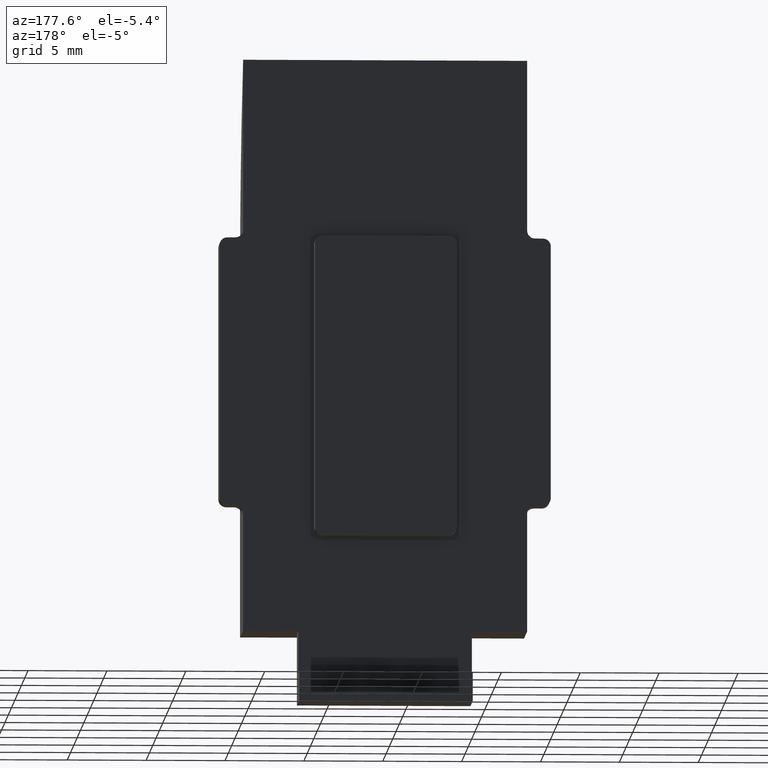
[diagram: clean part render]
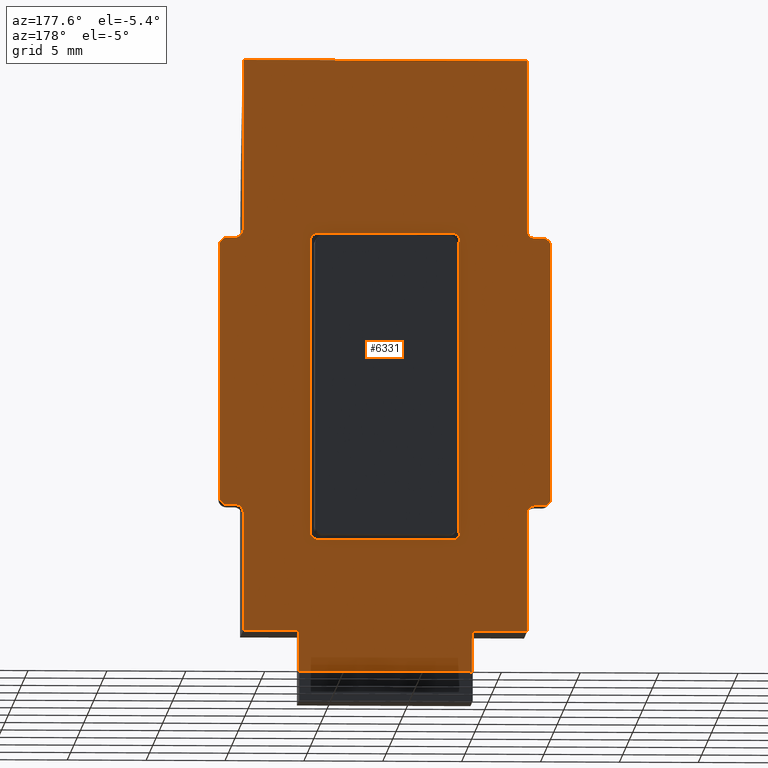
[diagram: same view with one face highlighted and labeled with its STEP entity id]
A machine part, auxiliary view. The second image highlights one B-rep face of the part: STEP entity #6331.
In plain terms, the highlighted planar face has unit normal (0, -1, -0).
Its self-contained STEP definition (entity closure, byte-faithful):
#73 = EDGE_CURVE ( 'NONE', #1155, #10602, #17064, .T. ) ;
#91 = VERTEX_POINT ( 'NONE', #8177 ) ;
#169 = VERTEX_POINT ( 'NONE', #1642 ) ;
#210 = ORIENTED_EDGE ( 'NONE', *, *, #6950, .T. ) ;
#285 = VERTEX_POINT ( 'NONE', #4861 ) ;
#477 = EDGE_CURVE ( 'NONE', #16206, #285, #15542, .T. ) ;
#620 = VERTEX_POINT ( 'NONE', #1868 ) ;
#788 = AXIS2_PLACEMENT_3D ( 'NONE', #14200, #7802, #4671 ) ;
#807 = CARTESIAN_POINT ( 'NONE',  ( -4.250000000000000000, 4.749999999999999112, 24.79999999999997939 ) ) ;
#840 = ORIENTED_EDGE ( 'NONE', *, *, #2299, .F. ) ;
#985 = VECTOR ( 'NONE', #8581, 1000.000000000000000 ) ;
#1121 = VERTEX_POINT ( 'NONE', #9013 ) ;
#1144 = CARTESIAN_POINT ( 'NONE',  ( -9.000000000000000000, 4.749999999999997335, 36.29999999999999716 ) ) ;
#1155 = VERTEX_POINT ( 'NONE', #11733 ) ;
#1160 = CARTESIAN_POINT ( 'NONE',  ( 9.999999999999998224, 4.749999999999995559, 24.99999999999997868 ) ) ;
#1166 = CARTESIAN_POINT ( 'NONE',  ( -4.250000000000000000, 4.750000000000001776, 5.799999999999978506 ) ) ;
#1185 = ORIENTED_EDGE ( 'NONE', *, *, #2472, .T. ) ;
#1194 = CARTESIAN_POINT ( 'NONE',  ( -5.500000000000000000, 4.750000000000001776, 0.000000000000000000 ) ) ;
#1231 = EDGE_CURVE ( 'NONE', #620, #9934, #10044, .T. ) ;
#1249 = CARTESIAN_POINT ( 'NONE',  ( -9.999999999999998224, 4.749999999999999112, 24.49999999999997513 ) ) ;
#1375 = CARTESIAN_POINT ( 'NONE',  ( -5.500000000000000000, 4.750000000000001776, -2.081668171172168513E-14 ) ) ;
#1430 = EDGE_CURVE ( 'NONE', #3749, #1848, #7914, .T. ) ;
#1454 = EDGE_CURVE ( 'NONE', #8890, #15946, #4307, .T. ) ;
#1509 = ORIENTED_EDGE ( 'NONE', *, *, #4008, .T. ) ;
#1642 = CARTESIAN_POINT ( 'NONE',  ( 5.499999999999999112, 4.750000000000001776, -2.081668171172168513E-14 ) ) ;
#1844 = ORIENTED_EDGE ( 'NONE', *, *, #4687, .F. ) ;
#1848 = VERTEX_POINT ( 'NONE', #16073 ) ;
#1858 = DIRECTION ( 'NONE',  ( -1.000000000000000000, -0.000000000000000000, -0.000000000000000000 ) ) ;
#1868 = CARTESIAN_POINT ( 'NONE',  ( 4.249999999999998224, 4.750000000000001776, 5.799999999999978506 ) ) ;
#1946 = DIRECTION ( 'NONE',  ( 1.047180315457801829E-31, -1.112002228190260459E-16, 1.000000000000000000 ) ) ;
#2299 = EDGE_CURVE ( 'NONE', #16244, #1121, #17435, .T. ) ;
#2305 = CARTESIAN_POINT ( 'NONE',  ( -10.49999999999999822, 4.749999999999995559, 7.999999999999976019 ) ) ;
#2325 = CARTESIAN_POINT ( 'NONE',  ( 9.999999999999998224, 4.749999999999999112, 24.49999999999997513 ) ) ;
#2472 = EDGE_CURVE ( 'NONE', #16206, #1121, #10006, .T. ) ;
#2569 = EDGE_CURVE ( 'NONE', #169, #5911, #7672, .T. ) ;
#2649 = CARTESIAN_POINT ( 'NONE',  ( 9.500000000000000000, 4.750000000000000888, 7.499999999999975131 ) ) ;
#2705 = VERTEX_POINT ( 'NONE', #9885 ) ;
#2789 = EDGE_CURVE ( 'NONE', #7587, #169, #12769, .T. ) ;
#2800 = LINE ( 'NONE', #10252, #5084 ) ;
#2825 = ORIENTED_EDGE ( 'NONE', *, *, #13451, .T. ) ;
#2831 = CARTESIAN_POINT ( 'NONE',  ( -4.250000000000000000, 4.750000000000000888, 6.299999999999979394 ) ) ;
#2863 = CIRCLE ( 'NONE', #3051, 0.5000000000000004441 ) ;
#2882 = CARTESIAN_POINT ( 'NONE',  ( -4.750000000000000888, 4.750000000000001776, 6.299999999999979394 ) ) ;
#2895 = EDGE_CURVE ( 'NONE', #16244, #4429, #9548, .T. ) ;
#3051 = AXIS2_PLACEMENT_3D ( 'NONE', #1249, #17306, #9175 ) ;
#3095 = ORIENTED_EDGE ( 'NONE', *, *, #2569, .F. ) ;
#3269 = DIRECTION ( 'NONE',  ( 0.000000000000000000, -4.448008912761044053E-17, -1.000000000000000000 ) ) ;
#3374 = CIRCLE ( 'NONE', #11768, 0.5000000000000004441 ) ;
#3432 = ORIENTED_EDGE ( 'NONE', *, *, #2789, .F. ) ;
#3496 = VECTOR ( 'NONE', #3269, 1000.000000000000000 ) ;
#3501 = DIRECTION ( 'NONE',  ( 0.000000000000000000, 0.000000000000000000, -1.000000000000000000 ) ) ;
#3592 = CARTESIAN_POINT ( 'NONE',  ( -9.000000000000000000, 4.750000000000000888, 7.499999999999975131 ) ) ;
#3627 = ORIENTED_EDGE ( 'NONE', *, *, #6387, .F. ) ;
#3655 = CARTESIAN_POINT ( 'NONE',  ( 9.500000000000000000, 4.749999999999999112, 25.49999999999997868 ) ) ;
#3689 = VECTOR ( 'NONE', #7224, 1000.000000000000000 ) ;
#3706 = ORIENTED_EDGE ( 'NONE', *, *, #11330, .F. ) ;
#3743 = CARTESIAN_POINT ( 'NONE',  ( -10.49999999999999822, 4.749999999999995559, 8.499999999999976907 ) ) ;
#3749 = VERTEX_POINT ( 'NONE', #12877 ) ;
#3787 = CARTESIAN_POINT ( 'NONE',  ( 10.49999999999999822, 4.749999999999995559, 8.499999999999976907 ) ) ;
#3828 = ORIENTED_EDGE ( 'NONE', *, *, #7582, .T. ) ;
#3943 = ORIENTED_EDGE ( 'NONE', *, *, #1231, .F. ) ;
#4008 = EDGE_CURVE ( 'NONE', #1848, #1155, #13167, .T. ) ;
#4118 = VECTOR ( 'NONE', #1858, 1000.000000000000000 ) ;
#4191 = CARTESIAN_POINT ( 'NONE',  ( 4.249999999999998224, 4.750000000000002665, 25.29999999999997939 ) ) ;
#4209 = DIRECTION ( 'NONE',  ( 0.000000000000000000, 0.000000000000000000, -1.000000000000000000 ) ) ;
#4304 = LINE ( 'NONE', #4329, #14061 ) ;
#4307 = LINE ( 'NONE', #12544, #985 ) ;
#4329 = CARTESIAN_POINT ( 'NONE',  ( -9.000000000000000000, 4.750000000000001776, 0.000000000000000000 ) ) ;
#4387 = ORIENTED_EDGE ( 'NONE', *, *, #14926, .T. ) ;
#4404 = ORIENTED_EDGE ( 'NONE', *, *, #8356, .T. ) ;
#4429 = VERTEX_POINT ( 'NONE', #17494 ) ;
#4575 = VERTEX_POINT ( 'NONE', #3592 ) ;
#4613 = VECTOR ( 'NONE', #12220, 1000.000000000000000 ) ;
#4652 = AXIS2_PLACEMENT_3D ( 'NONE', #2649, #14823, #17403 ) ;
#4671 = DIRECTION ( 'NONE',  ( 0.000000000000000000, 0.000000000000000000, -1.000000000000000000 ) ) ;
#4687 = EDGE_CURVE ( 'NONE', #5911, #17099, #13300, .T. ) ;
#4861 = CARTESIAN_POINT ( 'NONE',  ( 9.500000000000000000, 4.749999999999995559, 24.99999999999997868 ) ) ;
#4934 = AXIS2_PLACEMENT_3D ( 'NONE', #2325, #8952, #8843 ) ;
#4975 = CARTESIAN_POINT ( 'NONE',  ( 9.000000000000000000, 4.750000000000001776, 0.000000000000000000 ) ) ;
#4976 = DIRECTION ( 'NONE',  ( 0.000000000000000000, -1.000000000000000000, -1.112002228190260459E-16 ) ) ;
#4994 = DIRECTION ( 'NONE',  ( 0.000000000000000000, 0.000000000000000000, -1.000000000000000000 ) ) ;
#5058 = AXIS2_PLACEMENT_3D ( 'NONE', #4975, #15668, #11827 ) ;
#5084 = VECTOR ( 'NONE', #11608, 1000.000000000000000 ) ;
#5277 = VERTEX_POINT ( 'NONE', #9220 ) ;
#5321 = VERTEX_POINT ( 'NONE', #3743 ) ;
#5377 = ORIENTED_EDGE ( 'NONE', *, *, #73, .T. ) ;
#5467 = EDGE_CURVE ( 'NONE', #4429, #7439, #7352, .T. ) ;
#5497 = CARTESIAN_POINT ( 'NONE',  ( 9.000000000000000000, 4.750000000000001776, -2.081668171172168513E-14 ) ) ;
#5605 = LINE ( 'NONE', #5789, #16405 ) ;
#5676 = CARTESIAN_POINT ( 'NONE',  ( -9.000000000000000000, 4.750000000000001776, 0.000000000000000000 ) ) ;
#5677 = DIRECTION ( 'NONE',  ( 0.000000000000000000, -1.000000000000000000, -1.112002228190260459E-16 ) ) ;
#5765 = AXIS2_PLACEMENT_3D ( 'NONE', #16471, #6946, #16415 ) ;
#5789 = CARTESIAN_POINT ( 'NONE',  ( -4.750000000000000888, 4.750000000000002665, 25.29999999999997939 ) ) ;
#5828 = LINE ( 'NONE', #2305, #6464 ) ;
#5911 = VERTEX_POINT ( 'NONE', #9842 ) ;
#6094 = CARTESIAN_POINT ( 'NONE',  ( 9.000000000000000000, 4.750000000000001776, -2.700000000000021938 ) ) ;
#6128 = AXIS2_PLACEMENT_3D ( 'NONE', #10416, #4976, #14437 ) ;
#6204 = CARTESIAN_POINT ( 'NONE',  ( -9.000000000000000000, 4.750000000000001776, -2.081668171172168513E-14 ) ) ;
#6288 = DIRECTION ( 'NONE',  ( 1.000000000000000000, -0.000000000000000000, -0.000000000000000000 ) ) ;
#6331 = ADVANCED_FACE ( 'NONE', ( #8173, #15366 ), #11771, .F. ) ;
#6350 = DIRECTION ( 'NONE',  ( 0.000000000000000000, -1.112002228190260459E-16, 1.000000000000000000 ) ) ;
#6387 = EDGE_CURVE ( 'NONE', #91, #6411, #5828, .T. ) ;
#6405 = CARTESIAN_POINT ( 'NONE',  ( -4.750000000000000888, 4.750000000000001776, 5.799999999999978506 ) ) ;
#6411 = VERTEX_POINT ( 'NONE', #14551 ) ;
#6464 = VECTOR ( 'NONE', #6288, 1000.000000000000000 ) ;
#6546 = EDGE_LOOP ( 'NONE', ( #11820, #11209, #7000, #1509, #5377, #14754, #3706, #9752, #13638, #1185, #840, #16230, #12422, #10177, #1844, #3095, #3432, #3828, #210, #11962, #14841, #4387, #3627, #14119 ) ) ;
#6660 = VERTEX_POINT ( 'NONE', #13699 ) ;
#6692 = VERTEX_POINT ( 'NONE', #11253 ) ;
#6703 = DIRECTION ( 'NONE',  ( 1.000000000000000000, 0.000000000000000000, 0.000000000000000000 ) ) ;
#6785 = CARTESIAN_POINT ( 'NONE',  ( 9.000000000000000000, 4.750000000000001776, 0.000000000000000000 ) ) ;
#6945 = EDGE_CURVE ( 'NONE', #620, #14202, #11955, .T. ) ;
#6946 = DIRECTION ( 'NONE',  ( 0.000000000000000000, -1.000000000000000000, -1.112002228190260459E-16 ) ) ;
#6950 = EDGE_CURVE ( 'NONE', #9031, #8508, #8138, .T. ) ;
#6991 = AXIS2_PLACEMENT_3D ( 'NONE', #807, #10211, #14125 ) ;
#7000 = ORIENTED_EDGE ( 'NONE', *, *, #1430, .T. ) ;
#7025 = VECTOR ( 'NONE', #6703, 1000.000000000000000 ) ;
#7086 = VECTOR ( 'NONE', #6350, 1000.000000000000000 ) ;
#7092 = VERTEX_POINT ( 'NONE', #2882 ) ;
#7209 = AXIS2_PLACEMENT_3D ( 'NONE', #8576, #9996, #16685 ) ;
#7224 = DIRECTION ( 'NONE',  ( 1.000000000000000000, -0.000000000000000000, -0.000000000000000000 ) ) ;
#7244 = EDGE_CURVE ( 'NONE', #7092, #6692, #5605, .T. ) ;
#7273 = CARTESIAN_POINT ( 'NONE',  ( 5.500000000000000000, 4.750000000000001776, -2.700000000000021938 ) ) ;
#7352 = LINE ( 'NONE', #16675, #8821 ) ;
#7439 = VERTEX_POINT ( 'NONE', #8395 ) ;
#7582 = EDGE_CURVE ( 'NONE', #7587, #9031, #12814, .T. ) ;
#7587 = VERTEX_POINT ( 'NONE', #7273 ) ;
#7605 = CARTESIAN_POINT ( 'NONE',  ( 9.000000000000000000, 4.749999999999997335, 36.29999999999999716 ) ) ;
#7672 = LINE ( 'NONE', #5497, #7025 ) ;
#7705 = CARTESIAN_POINT ( 'NONE',  ( 9.000000000000000000, 4.750000000000000888, 7.499999999999975131 ) ) ;
#7789 = EDGE_CURVE ( 'NONE', #5277, #3749, #2863, .T. ) ;
#7802 = DIRECTION ( 'NONE',  ( -0.000000000000000000, 1.000000000000000000, 1.112002228190260459E-16 ) ) ;
#7908 = AXIS2_PLACEMENT_3D ( 'NONE', #3655, #15822, #17209 ) ;
#7914 = LINE ( 'NONE', #15133, #3689 ) ;
#8138 = LINE ( 'NONE', #1194, #7086 ) ;
#8173 = FACE_BOUND ( 'NONE', #8538, .T. ) ;
#8177 = CARTESIAN_POINT ( 'NONE',  ( -9.999999999999998224, 4.749999999999995559, 7.999999999999976019 ) ) ;
#8180 = DIRECTION ( 'NONE',  ( 0.000000000000000000, -1.112002228190260459E-16, 1.000000000000000000 ) ) ;
#8356 = EDGE_CURVE ( 'NONE', #8890, #6692, #15931, .T. ) ;
#8395 = CARTESIAN_POINT ( 'NONE',  ( 9.500000000000000000, 4.749999999999995559, 7.999999999999976019 ) ) ;
#8456 = EDGE_CURVE ( 'NONE', #2705, #285, #9782, .T. ) ;
#8486 = DIRECTION ( 'NONE',  ( -0.000000000000000000, -0.000000000000000000, 1.000000000000000000 ) ) ;
#8503 = CARTESIAN_POINT ( 'NONE',  ( 4.749999999999999112, 4.750000000000002665, 25.29999999999997939 ) ) ;
#8508 = VERTEX_POINT ( 'NONE', #1375 ) ;
#8538 = EDGE_LOOP ( 'NONE', ( #3943, #10719, #13124, #2825, #11746, #4404, #13775, #17244 ) ) ;
#8576 = CARTESIAN_POINT ( 'NONE',  ( -9.500000000000000000, 4.749999999999999112, 25.49999999999997868 ) ) ;
#8581 = DIRECTION ( 'NONE',  ( 1.000000000000000000, 0.000000000000000000, 0.000000000000000000 ) ) ;
#8765 = CIRCLE ( 'NONE', #10186, 0.5000000000000004441 ) ;
#8784 = DIRECTION ( 'NONE',  ( -1.000000000000000000, -0.000000000000000000, -0.000000000000000000 ) ) ;
#8821 = VECTOR ( 'NONE', #13822, 1000.000000000000000 ) ;
#8843 = DIRECTION ( 'NONE',  ( 0.000000000000000000, 0.000000000000000000, -1.000000000000000000 ) ) ;
#8856 = DIRECTION ( 'NONE',  ( -0.000000000000000000, 1.000000000000000000, 1.112002228190260459E-16 ) ) ;
#8890 = VERTEX_POINT ( 'NONE', #10965 ) ;
#8952 = DIRECTION ( 'NONE',  ( -0.000000000000000000, 1.000000000000000000, 1.112002228190260459E-16 ) ) ;
#9013 = CARTESIAN_POINT ( 'NONE',  ( 10.49999999999999822, 4.749999999999995559, 24.49999999999997513 ) ) ;
#9031 = VERTEX_POINT ( 'NONE', #13980 ) ;
#9057 = EDGE_CURVE ( 'NONE', #11184, #10602, #10003, .T. ) ;
#9144 = VECTOR ( 'NONE', #1946, 1000.000000000000000 ) ;
#9175 = DIRECTION ( 'NONE',  ( 0.000000000000000000, 0.000000000000000000, -1.000000000000000000 ) ) ;
#9220 = CARTESIAN_POINT ( 'NONE',  ( -10.49999999999999822, 4.749999999999995559, 24.49999999999997513 ) ) ;
#9241 = DIRECTION ( 'NONE',  ( 0.000000000000000000, -1.000000000000000000, -1.112002228190260459E-16 ) ) ;
#9548 = CIRCLE ( 'NONE', #788, 0.5000000000000004441 ) ;
#9601 = VECTOR ( 'NONE', #13058, 1000.000000000000000 ) ;
#9673 = DIRECTION ( 'NONE',  ( 0.000000000000000000, -1.112002228190260459E-16, 1.000000000000000000 ) ) ;
#9752 = ORIENTED_EDGE ( 'NONE', *, *, #8456, .T. ) ;
#9764 = VECTOR ( 'NONE', #8784, 1000.000000000000000 ) ;
#9782 = CIRCLE ( 'NONE', #7908, 0.5000000000000004441 ) ;
#9803 = CIRCLE ( 'NONE', #4652, 0.5000000000000004441 ) ;
#9842 = CARTESIAN_POINT ( 'NONE',  ( 9.000000000000000000, 4.750000000000001776, -2.081668171172168513E-14 ) ) ;
#9885 = CARTESIAN_POINT ( 'NONE',  ( 9.000000000000000000, 4.749999999999999112, 25.49999999999997868 ) ) ;
#9934 = VERTEX_POINT ( 'NONE', #1166 ) ;
#9940 = DIRECTION ( 'NONE',  ( -0.000000000000000000, 4.448008912761044053E-17, 1.000000000000000000 ) ) ;
#9956 = CARTESIAN_POINT ( 'NONE',  ( 9.000000000000000000, 4.749999999999997335, 36.29999999999999716 ) ) ;
#9996 = DIRECTION ( 'NONE',  ( 0.000000000000000000, -1.000000000000000000, -1.112002228190260459E-16 ) ) ;
#10003 = LINE ( 'NONE', #9956, #9764 ) ;
#10006 = CIRCLE ( 'NONE', #4934, 0.5000000000000004441 ) ;
#10044 = LINE ( 'NONE', #6405, #9601 ) ;
#10118 = LINE ( 'NONE', #12318, #16452 ) ;
#10163 = AXIS2_PLACEMENT_3D ( 'NONE', #12013, #9241, #4994 ) ;
#10177 = ORIENTED_EDGE ( 'NONE', *, *, #12747, .T. ) ;
#10186 = AXIS2_PLACEMENT_3D ( 'NONE', #2831, #5677, #4209 ) ;
#10211 = DIRECTION ( 'NONE',  ( 0.000000000000000000, -1.000000000000000000, -1.112002228190260459E-16 ) ) ;
#10252 = CARTESIAN_POINT ( 'NONE',  ( 9.000000000000000000, 4.750000000000001776, -2.081668171172168513E-14 ) ) ;
#10416 = CARTESIAN_POINT ( 'NONE',  ( 4.249999999999998224, 4.749999999999999112, 24.79999999999997939 ) ) ;
#10602 = VERTEX_POINT ( 'NONE', #1144 ) ;
#10719 = ORIENTED_EDGE ( 'NONE', *, *, #6945, .T. ) ;
#10965 = CARTESIAN_POINT ( 'NONE',  ( -4.250000000000000000, 4.750000000000002665, 25.29999999999997939 ) ) ;
#11052 = CARTESIAN_POINT ( 'NONE',  ( 4.749999999999999112, 4.750000000000001776, 6.299999999999979394 ) ) ;
#11106 = VECTOR ( 'NONE', #16453, 1000.000000000000000 ) ;
#11163 = DIRECTION ( 'NONE',  ( 0.000000000000000000, 0.000000000000000000, 1.000000000000000000 ) ) ;
#11184 = VERTEX_POINT ( 'NONE', #7605 ) ;
#11195 = CARTESIAN_POINT ( 'NONE',  ( 10.49999999999999822, 4.749999999999995559, 24.99999999999997868 ) ) ;
#11209 = ORIENTED_EDGE ( 'NONE', *, *, #7789, .T. ) ;
#11222 = DIRECTION ( 'NONE',  ( -1.000000000000000000, -0.000000000000000000, -0.000000000000000000 ) ) ;
#11240 = EDGE_CURVE ( 'NONE', #91, #5321, #3374, .T. ) ;
#11253 = CARTESIAN_POINT ( 'NONE',  ( -4.750000000000000888, 4.750000000000002665, 24.79999999999997939 ) ) ;
#11276 = CARTESIAN_POINT ( 'NONE',  ( -10.49999999999999822, 4.749999999999995559, 24.99999999999997868 ) ) ;
#11300 = VERTEX_POINT ( 'NONE', #6204 ) ;
#11330 = EDGE_CURVE ( 'NONE', #2705, #11184, #10118, .T. ) ;
#11350 = CARTESIAN_POINT ( 'NONE',  ( 10.49999999999999822, 4.749999999999995559, 24.99999999999997868 ) ) ;
#11608 = DIRECTION ( 'NONE',  ( 1.000000000000000000, 0.000000000000000000, 0.000000000000000000 ) ) ;
#11704 = VECTOR ( 'NONE', #11163, 1000.000000000000000 ) ;
#11733 = CARTESIAN_POINT ( 'NONE',  ( -9.000000000000000000, 4.749999999999999112, 25.49999999999997868 ) ) ;
#11746 = ORIENTED_EDGE ( 'NONE', *, *, #1454, .F. ) ;
#11768 = AXIS2_PLACEMENT_3D ( 'NONE', #15595, #8856, #3501 ) ;
#11771 = PLANE ( 'NONE',  #5058 ) ;
#11820 = ORIENTED_EDGE ( 'NONE', *, *, #13723, .T. ) ;
#11827 = DIRECTION ( 'NONE',  ( 0.000000000000000000, 1.112002228190260459E-16, -1.000000000000000000 ) ) ;
#11955 = CIRCLE ( 'NONE', #10163, 0.5000000000000004441 ) ;
#11962 = ORIENTED_EDGE ( 'NONE', *, *, #17000, .F. ) ;
#12013 = CARTESIAN_POINT ( 'NONE',  ( 4.249999999999998224, 4.750000000000000888, 6.299999999999979394 ) ) ;
#12220 = DIRECTION ( 'NONE',  ( 0.000000000000000000, -1.112002228190260459E-16, 1.000000000000000000 ) ) ;
#12318 = CARTESIAN_POINT ( 'NONE',  ( 9.000000000000000000, 4.750000000000001776, 0.000000000000000000 ) ) ;
#12422 = ORIENTED_EDGE ( 'NONE', *, *, #5467, .T. ) ;
#12486 = EDGE_CURVE ( 'NONE', #7092, #9934, #8765, .T. ) ;
#12488 = EDGE_CURVE ( 'NONE', #11300, #4575, #4304, .T. ) ;
#12543 = VECTOR ( 'NONE', #8486, 1000.000000000000000 ) ;
#12544 = CARTESIAN_POINT ( 'NONE',  ( -4.750000000000000888, 4.750000000000002665, 25.29999999999997939 ) ) ;
#12747 = EDGE_CURVE ( 'NONE', #7439, #17099, #9803, .T. ) ;
#12769 = LINE ( 'NONE', #12866, #9144 ) ;
#12814 = LINE ( 'NONE', #6094, #4118 ) ;
#12866 = CARTESIAN_POINT ( 'NONE',  ( 5.500000000000000000, 4.750000000000001776, 0.000000000000000000 ) ) ;
#12877 = CARTESIAN_POINT ( 'NONE',  ( -9.999999999999998224, 4.749999999999995559, 24.99999999999997868 ) ) ;
#12959 = EDGE_CURVE ( 'NONE', #6660, #14202, #15949, .T. ) ;
#13058 = DIRECTION ( 'NONE',  ( -1.000000000000000000, -0.000000000000000000, -0.000000000000000000 ) ) ;
#13124 = ORIENTED_EDGE ( 'NONE', *, *, #12959, .F. ) ;
#13167 = CIRCLE ( 'NONE', #7209, 0.5000000000000004441 ) ;
#13300 = LINE ( 'NONE', #6785, #4613 ) ;
#13451 = EDGE_CURVE ( 'NONE', #6660, #15946, #15297, .T. ) ;
#13638 = ORIENTED_EDGE ( 'NONE', *, *, #477, .F. ) ;
#13699 = CARTESIAN_POINT ( 'NONE',  ( 4.749999999999999112, 4.750000000000002665, 24.79999999999997939 ) ) ;
#13723 = EDGE_CURVE ( 'NONE', #5321, #5277, #16347, .T. ) ;
#13775 = ORIENTED_EDGE ( 'NONE', *, *, #7244, .F. ) ;
#13822 = DIRECTION ( 'NONE',  ( -1.000000000000000000, -0.000000000000000000, -0.000000000000000000 ) ) ;
#13980 = CARTESIAN_POINT ( 'NONE',  ( -5.500000000000000000, 4.750000000000001776, -2.700000000000021938 ) ) ;
#14035 = CIRCLE ( 'NONE', #5765, 0.5000000000000004441 ) ;
#14061 = VECTOR ( 'NONE', #8180, 1000.000000000000000 ) ;
#14119 = ORIENTED_EDGE ( 'NONE', *, *, #11240, .T. ) ;
#14125 = DIRECTION ( 'NONE',  ( 0.000000000000000000, 0.000000000000000000, -1.000000000000000000 ) ) ;
#14200 = CARTESIAN_POINT ( 'NONE',  ( 9.999999999999998224, 4.750000000000000888, 8.499999999999976907 ) ) ;
#14202 = VERTEX_POINT ( 'NONE', #11052 ) ;
#14437 = DIRECTION ( 'NONE',  ( 0.000000000000000000, 0.000000000000000000, -1.000000000000000000 ) ) ;
#14497 = VECTOR ( 'NONE', #11222, 1000.000000000000000 ) ;
#14551 = CARTESIAN_POINT ( 'NONE',  ( -9.500000000000000000, 4.749999999999995559, 7.999999999999976019 ) ) ;
#14754 = ORIENTED_EDGE ( 'NONE', *, *, #9057, .F. ) ;
#14823 = DIRECTION ( 'NONE',  ( 0.000000000000000000, -1.000000000000000000, -1.112002228190260459E-16 ) ) ;
#14841 = ORIENTED_EDGE ( 'NONE', *, *, #12488, .T. ) ;
#14926 = EDGE_CURVE ( 'NONE', #4575, #6411, #14035, .T. ) ;
#15133 = CARTESIAN_POINT ( 'NONE',  ( -10.49999999999999822, 4.749999999999995559, 24.99999999999997868 ) ) ;
#15297 = CIRCLE ( 'NONE', #6128, 0.5000000000000004441 ) ;
#15366 = FACE_OUTER_BOUND ( 'NONE', #6546, .T. ) ;
#15542 = LINE ( 'NONE', #11350, #14497 ) ;
#15595 = CARTESIAN_POINT ( 'NONE',  ( -9.999999999999998224, 4.750000000000000888, 8.499999999999976907 ) ) ;
#15668 = DIRECTION ( 'NONE',  ( 0.000000000000000000, -1.000000000000000000, -1.112002228190260459E-16 ) ) ;
#15822 = DIRECTION ( 'NONE',  ( 0.000000000000000000, -1.000000000000000000, -1.112002228190260459E-16 ) ) ;
#15931 = CIRCLE ( 'NONE', #6991, 0.5000000000000004441 ) ;
#15946 = VERTEX_POINT ( 'NONE', #4191 ) ;
#15949 = LINE ( 'NONE', #8503, #3496 ) ;
#16073 = CARTESIAN_POINT ( 'NONE',  ( -9.500000000000000000, 4.749999999999995559, 24.99999999999997868 ) ) ;
#16206 = VERTEX_POINT ( 'NONE', #1160 ) ;
#16230 = ORIENTED_EDGE ( 'NONE', *, *, #2895, .T. ) ;
#16244 = VERTEX_POINT ( 'NONE', #3787 ) ;
#16347 = LINE ( 'NONE', #11276, #11704 ) ;
#16405 = VECTOR ( 'NONE', #9940, 1000.000000000000000 ) ;
#16415 = DIRECTION ( 'NONE',  ( 0.000000000000000000, 0.000000000000000000, -1.000000000000000000 ) ) ;
#16452 = VECTOR ( 'NONE', #9673, 1000.000000000000000 ) ;
#16453 = DIRECTION ( 'NONE',  ( 0.000000000000000000, -1.112002228190260459E-16, 1.000000000000000000 ) ) ;
#16471 = CARTESIAN_POINT ( 'NONE',  ( -9.500000000000000000, 4.750000000000000888, 7.499999999999975131 ) ) ;
#16675 = CARTESIAN_POINT ( 'NONE',  ( 10.49999999999999822, 4.749999999999995559, 7.999999999999976019 ) ) ;
#16685 = DIRECTION ( 'NONE',  ( 0.000000000000000000, 0.000000000000000000, -1.000000000000000000 ) ) ;
#17000 = EDGE_CURVE ( 'NONE', #11300, #8508, #2800, .T. ) ;
#17064 = LINE ( 'NONE', #5676, #11106 ) ;
#17099 = VERTEX_POINT ( 'NONE', #7705 ) ;
#17209 = DIRECTION ( 'NONE',  ( 0.000000000000000000, 0.000000000000000000, -1.000000000000000000 ) ) ;
#17244 = ORIENTED_EDGE ( 'NONE', *, *, #12486, .T. ) ;
#17306 = DIRECTION ( 'NONE',  ( -0.000000000000000000, 1.000000000000000000, 1.112002228190260459E-16 ) ) ;
#17403 = DIRECTION ( 'NONE',  ( 0.000000000000000000, 0.000000000000000000, -1.000000000000000000 ) ) ;
#17435 = LINE ( 'NONE', #11195, #12543 ) ;
#17494 = CARTESIAN_POINT ( 'NONE',  ( 9.999999999999998224, 4.749999999999995559, 7.999999999999976019 ) ) ;